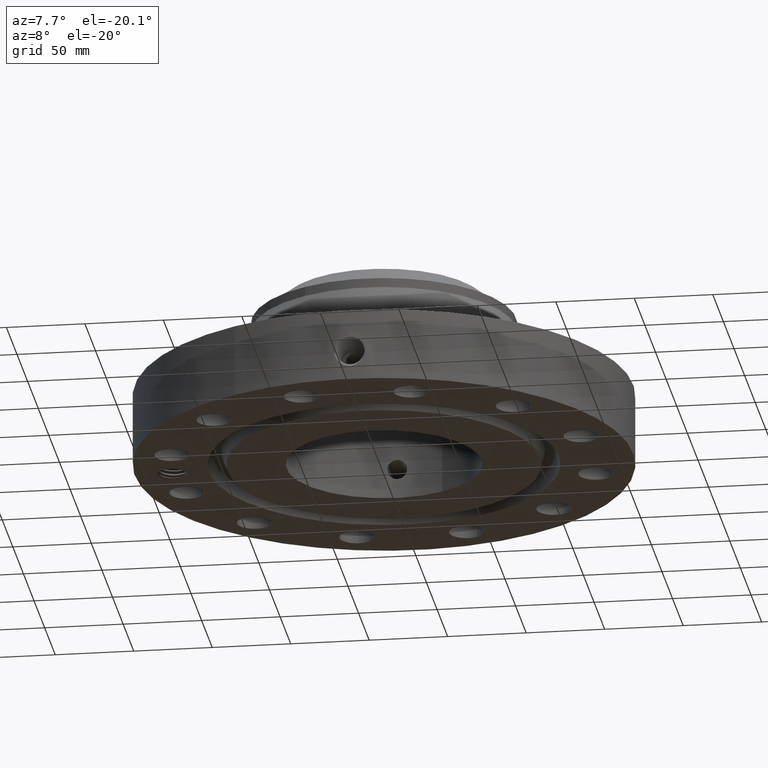
[diagram: clean part render]
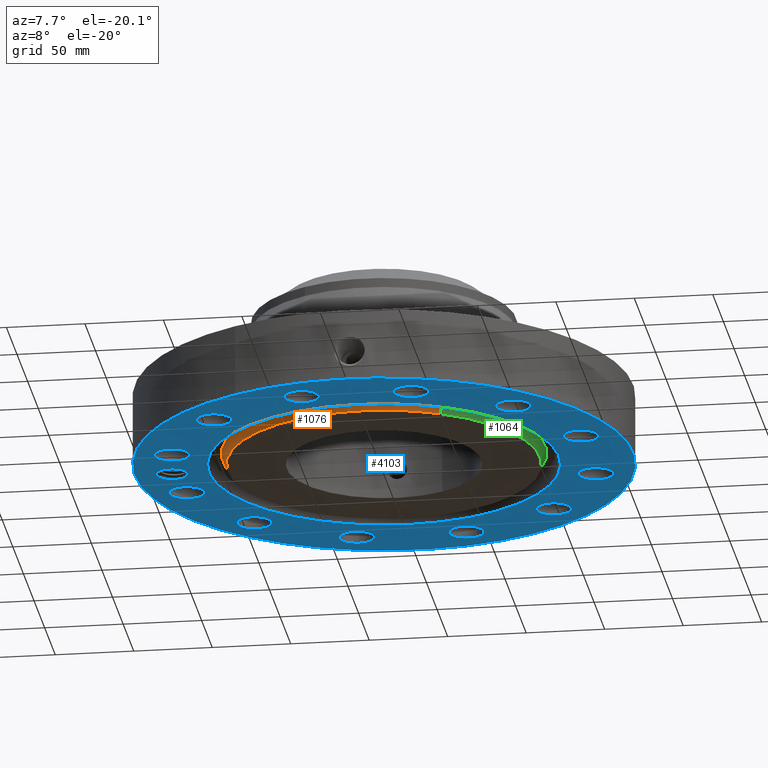
[diagram: same view with three faces highlighted in distinct colors, each labeled with its STEP entity id]
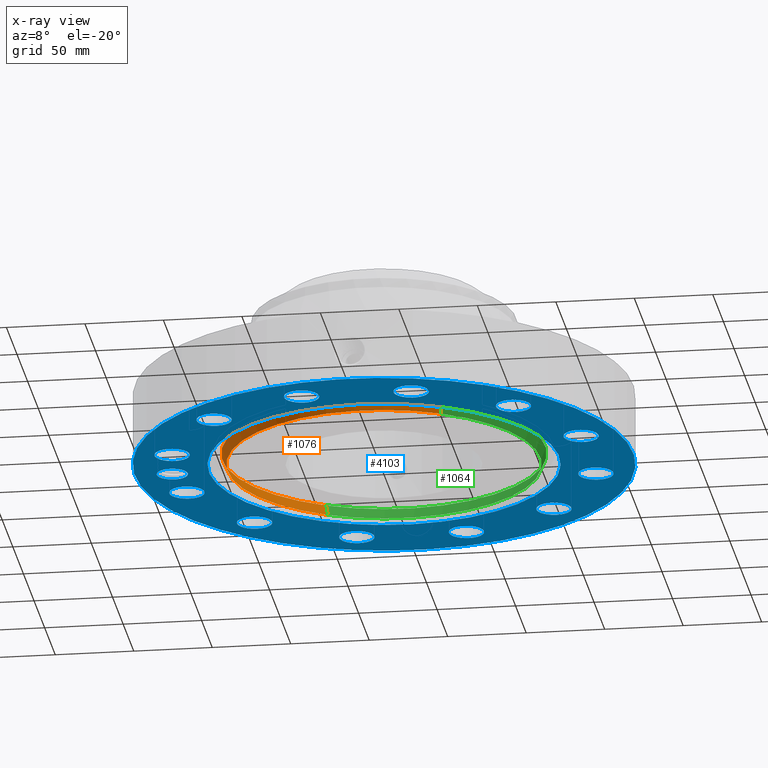
[diagram: x-ray of the same camera — body ghosted, the three highlighted faces saturated]
A machine part, auxiliary view with three faces highlighted in distinct colors.
The next image is the same camera in x-ray (body ghosted, the three faces saturated) — at least one of them is partly hidden behind the body in this view.
Their STEP definitions:

[orange] entity #1076 — the highlighted conical surface has half-angle 23 deg.
#611=AXIS2_PLACEMENT_3D('Circle Axis2P3D',#609,#610,$) ;
#1037=AXIS2_PLACEMENT_3D('Cone Axis2P3D',#1034,#1035,#1036) ;
#1067=AXIS2_PLACEMENT_3D('Circle Axis2P3D',#1065,#1066,$) ;
#604=CARTESIAN_POINT('Vertex',(-1.88030696241,3.44187880775,1.31128703696E-016)) ;
#606=CARTESIAN_POINT('Vertex',(1.88030696241,-3.44187880775,0.)) ;
#609=CARTESIAN_POINT('Axis2P3D Location',(-1.1189649382E-015,2.79741234551E-016,0.)) ;
#1034=CARTESIAN_POINT('Axis2P3D Location',(0.,0.,-0.0600000000002)) ;
#1039=CARTESIAN_POINT('Line Origine',(-1.91023352421,3.49665901167,0.147056332492)) ;
#1043=CARTESIAN_POINT('Vertex',(-1.94016008601,3.55143921559,0.294112664984)) ;
#1050=CARTESIAN_POINT('Vertex',(1.94016008601,-3.55143921559,0.294112664984)) ;
#1053=CARTESIAN_POINT('Line Origine',(1.91023352421,-3.49665901167,0.147056332492)) ;
#1065=CARTESIAN_POINT('Axis2P3D Location',(0.,0.,0.294112664984)) ;
#610=DIRECTION('Axis2P3D Direction',(0.,0.,-0.0393700787402)) ;
#1035=DIRECTION('Axis2P3D Direction',(0.,0.,0.0393700787402)) ;
#1036=DIRECTION('Axis2P3D XDirection',(-0.0188750212049,0.0345504945626,0.)) ;
#1040=DIRECTION('Vector Direction',(-0.00737505833565,0.0134999537303,0.0362403485611)) ;
#1054=DIRECTION('Vector Direction',(0.00737505833565,-0.0134999537303,0.0362403485611)) ;
#1066=DIRECTION('Axis2P3D Direction',(0.,0.,0.0393700787402)) ;
#1041=VECTOR('Line Direction',#1040,0.0393700787402) ;
#1055=VECTOR('Line Direction',#1054,0.0393700787402) ;
#1071=ORIENTED_EDGE('',*,*,#1057,.F.) ;
#1072=ORIENTED_EDGE('',*,*,#1069,.F.) ;
#1073=ORIENTED_EDGE('',*,*,#1045,.T.) ;
#1074=ORIENTED_EDGE('',*,*,#613,.F.) ;
#1076=ADVANCED_FACE('PartBody',(#1075),#1038,.T.) ;
#612=CIRCLE('generated circle',#611,3.92200000002) ;
#1068=CIRCLE('generated circle',#1067,4.04684341943) ;
#1038=CONICAL_SURFACE('Cone',#1037,3.89653151104,0.401425727959) ;
#613=EDGE_CURVE('',#607,#605,#612,.T.) ;
#1045=EDGE_CURVE('',#1044,#605,#1042,.F.) ;
#1057=EDGE_CURVE('',#1051,#607,#1056,.F.) ;
#1069=EDGE_CURVE('',#1044,#1051,#1068,.T.) ;
#1070=EDGE_LOOP('',(#1071,#1072,#1073,#1074)) ;
#1075=FACE_OUTER_BOUND('',#1070,.T.) ;
#1042=LINE('Line',#1039,#1041) ;
#1056=LINE('Line',#1053,#1055) ;
#605=VERTEX_POINT('',#604) ;
#607=VERTEX_POINT('',#606) ;
#1044=VERTEX_POINT('',#1043) ;
#1051=VERTEX_POINT('',#1050) ;

[blue] entity #4103 — the highlighted planar face has unit normal (0, 0, -1).
#598=AXIS2_PLACEMENT_3D('Plane Axis2P3D',#595,#596,#597) ;
#3275=AXIS2_PLACEMENT_3D('Circle Axis2P3D',#3273,#3274,$) ;
#3301=AXIS2_PLACEMENT_3D('Circle Axis2P3D',#3299,#3300,$) ;
#3849=AXIS2_PLACEMENT_3D('Circle Axis2P3D',#3847,#3848,$) ;
#3858=AXIS2_PLACEMENT_3D('Circle Axis2P3D',#3856,#3857,$) ;
#3867=AXIS2_PLACEMENT_3D('Circle Axis2P3D',#3865,#3866,$) ;
#3876=AXIS2_PLACEMENT_3D('Circle Axis2P3D',#3874,#3875,$) ;
#3885=AXIS2_PLACEMENT_3D('Circle Axis2P3D',#3883,#3884,$) ;
#3894=AXIS2_PLACEMENT_3D('Circle Axis2P3D',#3892,#3893,$) ;
#3903=AXIS2_PLACEMENT_3D('Circle Axis2P3D',#3901,#3902,$) ;
#3912=AXIS2_PLACEMENT_3D('Circle Axis2P3D',#3910,#3911,$) ;
#3921=AXIS2_PLACEMENT_3D('Circle Axis2P3D',#3919,#3920,$) ;
#3930=AXIS2_PLACEMENT_3D('Circle Axis2P3D',#3928,#3929,$) ;
#3939=AXIS2_PLACEMENT_3D('Circle Axis2P3D',#3937,#3938,$) ;
#3948=AXIS2_PLACEMENT_3D('Circle Axis2P3D',#3946,#3947,$) ;
#3957=AXIS2_PLACEMENT_3D('Circle Axis2P3D',#3955,#3956,$) ;
#3966=AXIS2_PLACEMENT_3D('Circle Axis2P3D',#3964,#3965,$) ;
#3975=AXIS2_PLACEMENT_3D('Circle Axis2P3D',#3973,#3974,$) ;
#3984=AXIS2_PLACEMENT_3D('Circle Axis2P3D',#3982,#3983,$) ;
#3993=AXIS2_PLACEMENT_3D('Circle Axis2P3D',#3991,#3992,$) ;
#4002=AXIS2_PLACEMENT_3D('Circle Axis2P3D',#4000,#4001,$) ;
#4011=AXIS2_PLACEMENT_3D('Circle Axis2P3D',#4009,#4010,$) ;
#4020=AXIS2_PLACEMENT_3D('Circle Axis2P3D',#4018,#4019,$) ;
#4029=AXIS2_PLACEMENT_3D('Circle Axis2P3D',#4027,#4028,$) ;
#4038=AXIS2_PLACEMENT_3D('Circle Axis2P3D',#4036,#4037,$) ;
#4047=AXIS2_PLACEMENT_3D('Circle Axis2P3D',#4045,#4046,$) ;
#4056=AXIS2_PLACEMENT_3D('Circle Axis2P3D',#4054,#4055,$) ;
#4065=AXIS2_PLACEMENT_3D('Circle Axis2P3D',#4063,#4064,$) ;
#4074=AXIS2_PLACEMENT_3D('Circle Axis2P3D',#4072,#4073,$) ;
#4083=AXIS2_PLACEMENT_3D('Circle Axis2P3D',#4081,#4082,$) ;
#4092=AXIS2_PLACEMENT_3D('Circle Axis2P3D',#4090,#4091,$) ;
#595=CARTESIAN_POINT('Axis2P3D Location',(0.,2.44850000001,0.)) ;
#3273=CARTESIAN_POINT('Axis2P3D Location',(0.,0.,-3.49676543189E-017)) ;
#3277=CARTESIAN_POINT('Vertex',(-2.10515754002,3.85346502928,-2.09805925913E-016)) ;
#3279=CARTESIAN_POINT('Vertex',(2.10515754002,-3.85346502928,1.04902962957E-016)) ;
#3299=CARTESIAN_POINT('Axis2P3D Location',(0.,0.,-3.49676543189E-017)) ;
#3847=CARTESIAN_POINT('Axis2P3D Location',(0.,0.,0.)) ;
#3851=CARTESIAN_POINT('Vertex',(-2.99640961629,-5.48489101184,5.59482469102E-016)) ;
#3853=CARTESIAN_POINT('Vertex',(2.99640961629,5.48489101184,5.59482469102E-016)) ;
#3856=CARTESIAN_POINT('Axis2P3D Location',(0.,0.,0.)) ;
#3865=CARTESIAN_POINT('Axis2P3D Location',(-5.31000000002,-2.79741234551E-016,0.)) ;
#3869=CARTESIAN_POINT('Vertex',(-4.96938826819,-0.186077037172,0.)) ;
#3871=CARTESIAN_POINT('Vertex',(-5.65061173186,0.186077037171,0.)) ;
#3874=CARTESIAN_POINT('Axis2P3D Location',(-5.31000000002,-2.79741234551E-016,0.)) ;
#3883=CARTESIAN_POINT('Axis2P3D Location',(5.12906613762,-1.3743291295,0.)) ;
#3887=CARTESIAN_POINT('Vertex',(5.51520246485,-1.58527636649,0.)) ;
#3889=CARTESIAN_POINT('Vertex',(4.74292981038,-1.16338189251,0.)) ;
#3892=CARTESIAN_POINT('Axis2P3D Location',(5.12906613762,-1.3743291295,0.)) ;
#3901=CARTESIAN_POINT('Axis2P3D Location',(3.75473700812,-3.75473700812,0.)) ;
#3905=CARTESIAN_POINT('Vertex',(3.5258067579,-3.37898317841,0.)) ;
#3907=CARTESIAN_POINT('Vertex',(3.98366725833,-4.13049083782,0.)) ;
#3910=CARTESIAN_POINT('Axis2P3D Location',(3.75473700812,-3.75473700812,0.)) ;
#3919=CARTESIAN_POINT('Axis2P3D Location',(1.3743291295,-5.12906613762,0.)) ;
#3923=CARTESIAN_POINT('Vertex',(1.36394663197,-4.68918865041,0.)) ;
#3925=CARTESIAN_POINT('Vertex',(1.38471162703,-5.56894362482,0.)) ;
#3928=CARTESIAN_POINT('Axis2P3D Location',(1.3743291295,-5.12906613762,0.)) ;
#3937=CARTESIAN_POINT('Axis2P3D Location',(-1.3743291295,-5.12906613762,0.)) ;
#3941=CARTESIAN_POINT('Vertex',(-1.16338189251,-4.74292981038,0.)) ;
#3943=CARTESIAN_POINT('Vertex',(-1.58527636649,-5.51520246485,0.)) ;
#3946=CARTESIAN_POINT('Axis2P3D Location',(-1.3743291295,-5.12906613762,0.)) ;
#3955=CARTESIAN_POINT('Axis2P3D Location',(-3.75473700812,-3.75473700812,0.)) ;
#3959=CARTESIAN_POINT('Vertex',(-3.37898317841,-3.5258067579,0.)) ;
#3961=CARTESIAN_POINT('Vertex',(-4.13049083782,-3.98366725833,-1.67844740731E-015)) ;
#3964=CARTESIAN_POINT('Axis2P3D Location',(-3.75473700812,-3.75473700812,0.)) ;
#3973=CARTESIAN_POINT('Axis2P3D Location',(-5.12906613762,-1.3743291295,0.)) ;
#3977=CARTESIAN_POINT('Vertex',(-4.68918865041,-1.36394663197,0.)) ;
#3979=CARTESIAN_POINT('Vertex',(-5.56894362482,-1.38471162703,0.)) ;
#3982=CARTESIAN_POINT('Axis2P3D Location',(-5.12906613762,-1.3743291295,0.)) ;
#3991=CARTESIAN_POINT('Axis2P3D Location',(-5.12906613762,1.3743291295,0.)) ;
#3995=CARTESIAN_POINT('Vertex',(-4.74292981038,1.16338189251,0.)) ;
#3997=CARTESIAN_POINT('Vertex',(-5.51520246485,1.58527636649,0.)) ;
#4000=CARTESIAN_POINT('Axis2P3D Location',(-5.12906613762,1.3743291295,0.)) ;
#4009=CARTESIAN_POINT('Axis2P3D Location',(-3.75473700812,3.75473700812,0.)) ;
#4013=CARTESIAN_POINT('Vertex',(-3.5258067579,3.37898317841,0.)) ;
#4015=CARTESIAN_POINT('Vertex',(-3.98366725833,4.13049083782,0.)) ;
#4018=CARTESIAN_POINT('Axis2P3D Location',(-3.75473700812,3.75473700812,0.)) ;
#4027=CARTESIAN_POINT('Axis2P3D Location',(-1.3743291295,5.12906613762,0.)) ;
#4031=CARTESIAN_POINT('Vertex',(-1.36394663197,4.68918865041,0.)) ;
#4033=CARTESIAN_POINT('Vertex',(-1.38471162703,5.56894362482,0.)) ;
#4036=CARTESIAN_POINT('Axis2P3D Location',(-1.3743291295,5.12906613762,0.)) ;
#4045=CARTESIAN_POINT('Axis2P3D Location',(1.3743291295,5.12906613762,0.)) ;
#4049=CARTESIAN_POINT('Vertex',(1.16338189251,4.74292981038,0.)) ;
#4051=CARTESIAN_POINT('Vertex',(1.58527636649,5.51520246485,0.)) ;
#4054=CARTESIAN_POINT('Axis2P3D Location',(1.3743291295,5.12906613762,0.)) ;
#4063=CARTESIAN_POINT('Axis2P3D Location',(3.75473700812,3.75473700812,0.)) ;
#4067=CARTESIAN_POINT('Vertex',(3.37898317841,3.5258067579,0.)) ;
#4069=CARTESIAN_POINT('Vertex',(4.13049083782,3.98366725833,0.)) ;
#4072=CARTESIAN_POINT('Axis2P3D Location',(3.75473700812,3.75473700812,0.)) ;
#4081=CARTESIAN_POINT('Axis2P3D Location',(5.12906613762,1.3743291295,0.)) ;
#4085=CARTESIAN_POINT('Vertex',(4.68918865041,1.36394663197,0.)) ;
#4087=CARTESIAN_POINT('Vertex',(5.56894362482,1.38471162703,0.)) ;
#4090=CARTESIAN_POINT('Axis2P3D Location',(5.12906613762,1.3743291295,0.)) ;
#596=DIRECTION('Axis2P3D Direction',(0.,0.,-0.0393700787402)) ;
#597=DIRECTION('Axis2P3D XDirection',(0.0393700787402,0.,0.)) ;
#3274=DIRECTION('Axis2P3D Direction',(0.,0.,-0.0393700787402)) ;
#3300=DIRECTION('Axis2P3D Direction',(0.,0.,-0.0393700787402)) ;
#3848=DIRECTION('Axis2P3D Direction',(0.,0.,-0.0393700787402)) ;
#3857=DIRECTION('Axis2P3D Direction',(0.,0.,-0.0393700787402)) ;
#3866=DIRECTION('Axis2P3D Direction',(0.,0.,-0.0393700787402)) ;
#3875=DIRECTION('Axis2P3D Direction',(0.,0.,-0.0393700787402)) ;
#3884=DIRECTION('Axis2P3D Direction',(0.,0.,-0.0393700787402)) ;
#3893=DIRECTION('Axis2P3D Direction',(0.,0.,-0.0393700787402)) ;
#3902=DIRECTION('Axis2P3D Direction',(0.,0.,-0.0393700787402)) ;
#3911=DIRECTION('Axis2P3D Direction',(0.,0.,-0.0393700787402)) ;
#3920=DIRECTION('Axis2P3D Direction',(0.,0.,-0.0393700787402)) ;
#3929=DIRECTION('Axis2P3D Direction',(0.,0.,-0.0393700787402)) ;
#3938=DIRECTION('Axis2P3D Direction',(0.,0.,-0.0393700787402)) ;
#3947=DIRECTION('Axis2P3D Direction',(0.,0.,-0.0393700787402)) ;
#3956=DIRECTION('Axis2P3D Direction',(0.,0.,-0.0393700787402)) ;
#3965=DIRECTION('Axis2P3D Direction',(0.,0.,-0.0393700787402)) ;
#3974=DIRECTION('Axis2P3D Direction',(0.,0.,-0.0393700787402)) ;
#3983=DIRECTION('Axis2P3D Direction',(0.,0.,-0.0393700787402)) ;
#3992=DIRECTION('Axis2P3D Direction',(0.,0.,-0.0393700787402)) ;
#4001=DIRECTION('Axis2P3D Direction',(0.,0.,-0.0393700787402)) ;
#4010=DIRECTION('Axis2P3D Direction',(0.,0.,-0.0393700787402)) ;
#4019=DIRECTION('Axis2P3D Direction',(0.,0.,-0.0393700787402)) ;
#4028=DIRECTION('Axis2P3D Direction',(0.,0.,-0.0393700787402)) ;
#4037=DIRECTION('Axis2P3D Direction',(0.,0.,-0.0393700787402)) ;
#4046=DIRECTION('Axis2P3D Direction',(0.,0.,-0.0393700787402)) ;
#4055=DIRECTION('Axis2P3D Direction',(0.,0.,-0.0393700787402)) ;
#4064=DIRECTION('Axis2P3D Direction',(0.,0.,-0.0393700787402)) ;
#4073=DIRECTION('Axis2P3D Direction',(0.,0.,-0.0393700787402)) ;
#4082=DIRECTION('Axis2P3D Direction',(0.,0.,-0.0393700787402)) ;
#4091=DIRECTION('Axis2P3D Direction',(0.,0.,-0.0393700787402)) ;
#3862=ORIENTED_EDGE('',*,*,#3855,.T.) ;
#3863=ORIENTED_EDGE('',*,*,#3860,.T.) ;
#3880=ORIENTED_EDGE('',*,*,#3873,.F.) ;
#3881=ORIENTED_EDGE('',*,*,#3878,.F.) ;
#3898=ORIENTED_EDGE('',*,*,#3891,.F.) ;
#3899=ORIENTED_EDGE('',*,*,#3896,.F.) ;
#3916=ORIENTED_EDGE('',*,*,#3909,.F.) ;
#3917=ORIENTED_EDGE('',*,*,#3914,.F.) ;
#3934=ORIENTED_EDGE('',*,*,#3927,.F.) ;
#3935=ORIENTED_EDGE('',*,*,#3932,.F.) ;
#3952=ORIENTED_EDGE('',*,*,#3945,.F.) ;
#3953=ORIENTED_EDGE('',*,*,#3950,.F.) ;
#3970=ORIENTED_EDGE('',*,*,#3963,.F.) ;
#3971=ORIENTED_EDGE('',*,*,#3968,.F.) ;
#3988=ORIENTED_EDGE('',*,*,#3981,.F.) ;
#3989=ORIENTED_EDGE('',*,*,#3986,.F.) ;
#4006=ORIENTED_EDGE('',*,*,#3999,.F.) ;
#4007=ORIENTED_EDGE('',*,*,#4004,.F.) ;
#4024=ORIENTED_EDGE('',*,*,#4017,.F.) ;
#4025=ORIENTED_EDGE('',*,*,#4022,.F.) ;
#4042=ORIENTED_EDGE('',*,*,#4035,.F.) ;
#4043=ORIENTED_EDGE('',*,*,#4040,.F.) ;
#4060=ORIENTED_EDGE('',*,*,#4053,.F.) ;
#4061=ORIENTED_EDGE('',*,*,#4058,.F.) ;
#4078=ORIENTED_EDGE('',*,*,#4071,.F.) ;
#4079=ORIENTED_EDGE('',*,*,#4076,.F.) ;
#4096=ORIENTED_EDGE('',*,*,#4089,.F.) ;
#4097=ORIENTED_EDGE('',*,*,#4094,.F.) ;
#4100=ORIENTED_EDGE('',*,*,#3303,.F.) ;
#4101=ORIENTED_EDGE('',*,*,#3281,.F.) ;
#3882=FACE_BOUND('',#3879,.T.) ;
#3900=FACE_BOUND('',#3897,.T.) ;
#3918=FACE_BOUND('',#3915,.T.) ;
#3936=FACE_BOUND('',#3933,.T.) ;
#3954=FACE_BOUND('',#3951,.T.) ;
#3972=FACE_BOUND('',#3969,.T.) ;
#3990=FACE_BOUND('',#3987,.T.) ;
#4008=FACE_BOUND('',#4005,.T.) ;
#4026=FACE_BOUND('',#4023,.T.) ;
#4044=FACE_BOUND('',#4041,.T.) ;
#4062=FACE_BOUND('',#4059,.T.) ;
#4080=FACE_BOUND('',#4077,.T.) ;
#4098=FACE_BOUND('',#4095,.T.) ;
#4102=FACE_BOUND('',#4099,.T.) ;
#4103=ADVANCED_FACE('PartBody',(#3864,#3882,#3900,#3918,#3936,#3954,#3972,#3990,#4008,#4026,#4044,#4062,#4080,#4098,#4102),#599,.T.) ;
#3276=CIRCLE('generated circle',#3275,4.39100000002) ;
#3302=CIRCLE('generated circle',#3301,4.39100000002) ;
#3850=CIRCLE('generated circle',#3849,6.25000000003) ;
#3859=CIRCLE('generated circle',#3858,6.25000000003) ;
#3868=CIRCLE('generated circle',#3867,0.388125000002) ;
#3877=CIRCLE('generated circle',#3876,0.388125000002) ;
#3886=CIRCLE('generated circle',#3885,0.440000000002) ;
#3895=CIRCLE('generated circle',#3894,0.440000000002) ;
#3904=CIRCLE('generated circle',#3903,0.440000000002) ;
#3913=CIRCLE('generated circle',#3912,0.440000000002) ;
#3922=CIRCLE('generated circle',#3921,0.440000000002) ;
#3931=CIRCLE('generated circle',#3930,0.440000000002) ;
#3940=CIRCLE('generated circle',#3939,0.440000000002) ;
#3949=CIRCLE('generated circle',#3948,0.440000000002) ;
#3958=CIRCLE('generated circle',#3957,0.440000000002) ;
#3967=CIRCLE('generated circle',#3966,0.440000000002) ;
#3976=CIRCLE('generated circle',#3975,0.440000000002) ;
#3985=CIRCLE('generated circle',#3984,0.440000000002) ;
#3994=CIRCLE('generated circle',#3993,0.440000000002) ;
#4003=CIRCLE('generated circle',#4002,0.440000000002) ;
#4012=CIRCLE('generated circle',#4011,0.440000000002) ;
#4021=CIRCLE('generated circle',#4020,0.440000000002) ;
#4030=CIRCLE('generated circle',#4029,0.440000000002) ;
#4039=CIRCLE('generated circle',#4038,0.440000000002) ;
#4048=CIRCLE('generated circle',#4047,0.440000000002) ;
#4057=CIRCLE('generated circle',#4056,0.440000000002) ;
#4066=CIRCLE('generated circle',#4065,0.440000000002) ;
#4075=CIRCLE('generated circle',#4074,0.440000000002) ;
#4084=CIRCLE('generated circle',#4083,0.440000000002) ;
#4093=CIRCLE('generated circle',#4092,0.440000000002) ;
#3281=EDGE_CURVE('',#3278,#3280,#3276,.T.) ;
#3303=EDGE_CURVE('',#3280,#3278,#3302,.T.) ;
#3855=EDGE_CURVE('',#3852,#3854,#3850,.T.) ;
#3860=EDGE_CURVE('',#3854,#3852,#3859,.T.) ;
#3873=EDGE_CURVE('',#3870,#3872,#3868,.T.) ;
#3878=EDGE_CURVE('',#3872,#3870,#3877,.T.) ;
#3891=EDGE_CURVE('',#3888,#3890,#3886,.T.) ;
#3896=EDGE_CURVE('',#3890,#3888,#3895,.T.) ;
#3909=EDGE_CURVE('',#3906,#3908,#3904,.T.) ;
#3914=EDGE_CURVE('',#3908,#3906,#3913,.T.) ;
#3927=EDGE_CURVE('',#3924,#3926,#3922,.T.) ;
#3932=EDGE_CURVE('',#3926,#3924,#3931,.T.) ;
#3945=EDGE_CURVE('',#3942,#3944,#3940,.T.) ;
#3950=EDGE_CURVE('',#3944,#3942,#3949,.T.) ;
#3963=EDGE_CURVE('',#3960,#3962,#3958,.T.) ;
#3968=EDGE_CURVE('',#3962,#3960,#3967,.T.) ;
#3981=EDGE_CURVE('',#3978,#3980,#3976,.T.) ;
#3986=EDGE_CURVE('',#3980,#3978,#3985,.T.) ;
#3999=EDGE_CURVE('',#3996,#3998,#3994,.T.) ;
#4004=EDGE_CURVE('',#3998,#3996,#4003,.T.) ;
#4017=EDGE_CURVE('',#4014,#4016,#4012,.T.) ;
#4022=EDGE_CURVE('',#4016,#4014,#4021,.T.) ;
#4035=EDGE_CURVE('',#4032,#4034,#4030,.T.) ;
#4040=EDGE_CURVE('',#4034,#4032,#4039,.T.) ;
#4053=EDGE_CURVE('',#4050,#4052,#4048,.T.) ;
#4058=EDGE_CURVE('',#4052,#4050,#4057,.T.) ;
#4071=EDGE_CURVE('',#4068,#4070,#4066,.T.) ;
#4076=EDGE_CURVE('',#4070,#4068,#4075,.T.) ;
#4089=EDGE_CURVE('',#4086,#4088,#4084,.T.) ;
#4094=EDGE_CURVE('',#4088,#4086,#4093,.T.) ;
#3861=EDGE_LOOP('',(#3862,#3863)) ;
#3879=EDGE_LOOP('',(#3880,#3881)) ;
#3897=EDGE_LOOP('',(#3898,#3899)) ;
#3915=EDGE_LOOP('',(#3916,#3917)) ;
#3933=EDGE_LOOP('',(#3934,#3935)) ;
#3951=EDGE_LOOP('',(#3952,#3953)) ;
#3969=EDGE_LOOP('',(#3970,#3971)) ;
#3987=EDGE_LOOP('',(#3988,#3989)) ;
#4005=EDGE_LOOP('',(#4006,#4007)) ;
#4023=EDGE_LOOP('',(#4024,#4025)) ;
#4041=EDGE_LOOP('',(#4042,#4043)) ;
#4059=EDGE_LOOP('',(#4060,#4061)) ;
#4077=EDGE_LOOP('',(#4078,#4079)) ;
#4095=EDGE_LOOP('',(#4096,#4097)) ;
#4099=EDGE_LOOP('',(#4100,#4101)) ;
#3864=FACE_OUTER_BOUND('',#3861,.T.) ;
#599=PLANE('',#598) ;
#3278=VERTEX_POINT('',#3277) ;
#3280=VERTEX_POINT('',#3279) ;
#3852=VERTEX_POINT('',#3851) ;
#3854=VERTEX_POINT('',#3853) ;
#3870=VERTEX_POINT('',#3869) ;
#3872=VERTEX_POINT('',#3871) ;
#3888=VERTEX_POINT('',#3887) ;
#3890=VERTEX_POINT('',#3889) ;
#3906=VERTEX_POINT('',#3905) ;
#3908=VERTEX_POINT('',#3907) ;
#3924=VERTEX_POINT('',#3923) ;
#3926=VERTEX_POINT('',#3925) ;
#3942=VERTEX_POINT('',#3941) ;
#3944=VERTEX_POINT('',#3943) ;
#3960=VERTEX_POINT('',#3959) ;
#3962=VERTEX_POINT('',#3961) ;
#3978=VERTEX_POINT('',#3977) ;
#3980=VERTEX_POINT('',#3979) ;
#3996=VERTEX_POINT('',#3995) ;
#3998=VERTEX_POINT('',#3997) ;
#4014=VERTEX_POINT('',#4013) ;
#4016=VERTEX_POINT('',#4015) ;
#4032=VERTEX_POINT('',#4031) ;
#4034=VERTEX_POINT('',#4033) ;
#4050=VERTEX_POINT('',#4049) ;
#4052=VERTEX_POINT('',#4051) ;
#4068=VERTEX_POINT('',#4067) ;
#4070=VERTEX_POINT('',#4069) ;
#4086=VERTEX_POINT('',#4085) ;
#4088=VERTEX_POINT('',#4087) ;

[green] entity #1064 — the highlighted conical surface has half-angle 23 deg.
#602=AXIS2_PLACEMENT_3D('Circle Axis2P3D',#600,#601,$) ;
#1037=AXIS2_PLACEMENT_3D('Cone Axis2P3D',#1034,#1035,#1036) ;
#1048=AXIS2_PLACEMENT_3D('Circle Axis2P3D',#1046,#1047,$) ;
#600=CARTESIAN_POINT('Axis2P3D Location',(1.1189649382E-015,2.79741234551E-016,0.)) ;
#604=CARTESIAN_POINT('Vertex',(-1.88030696241,3.44187880775,1.31128703696E-016)) ;
#606=CARTESIAN_POINT('Vertex',(1.88030696241,-3.44187880775,0.)) ;
#1034=CARTESIAN_POINT('Axis2P3D Location',(0.,0.,-0.0600000000002)) ;
#1039=CARTESIAN_POINT('Line Origine',(-1.91023352421,3.49665901167,0.147056332492)) ;
#1043=CARTESIAN_POINT('Vertex',(-1.94016008601,3.55143921559,0.294112664984)) ;
#1046=CARTESIAN_POINT('Axis2P3D Location',(0.,0.,0.294112664984)) ;
#1050=CARTESIAN_POINT('Vertex',(1.94016008601,-3.55143921559,0.294112664984)) ;
#1053=CARTESIAN_POINT('Line Origine',(1.91023352421,-3.49665901167,0.147056332492)) ;
#601=DIRECTION('Axis2P3D Direction',(0.,0.,-0.0393700787402)) ;
#1035=DIRECTION('Axis2P3D Direction',(0.,0.,0.0393700787402)) ;
#1036=DIRECTION('Axis2P3D XDirection',(-0.0188750212049,0.0345504945626,0.)) ;
#1040=DIRECTION('Vector Direction',(-0.00737505833565,0.0134999537303,0.0362403485611)) ;
#1047=DIRECTION('Axis2P3D Direction',(0.,0.,0.0393700787402)) ;
#1054=DIRECTION('Vector Direction',(0.00737505833565,-0.0134999537303,0.0362403485611)) ;
#1041=VECTOR('Line Direction',#1040,0.0393700787402) ;
#1055=VECTOR('Line Direction',#1054,0.0393700787402) ;
#1059=ORIENTED_EDGE('',*,*,#1045,.F.) ;
#1060=ORIENTED_EDGE('',*,*,#1052,.F.) ;
#1061=ORIENTED_EDGE('',*,*,#1057,.T.) ;
#1062=ORIENTED_EDGE('',*,*,#608,.F.) ;
#1064=ADVANCED_FACE('PartBody',(#1063),#1038,.T.) ;
#603=CIRCLE('generated circle',#602,3.92200000002) ;
#1049=CIRCLE('generated circle',#1048,4.04684341943) ;
#1038=CONICAL_SURFACE('Cone',#1037,3.89653151104,0.401425727959) ;
#608=EDGE_CURVE('',#605,#607,#603,.T.) ;
#1045=EDGE_CURVE('',#1044,#605,#1042,.F.) ;
#1052=EDGE_CURVE('',#1051,#1044,#1049,.T.) ;
#1057=EDGE_CURVE('',#1051,#607,#1056,.F.) ;
#1058=EDGE_LOOP('',(#1059,#1060,#1061,#1062)) ;
#1063=FACE_OUTER_BOUND('',#1058,.T.) ;
#1042=LINE('Line',#1039,#1041) ;
#1056=LINE('Line',#1053,#1055) ;
#605=VERTEX_POINT('',#604) ;
#607=VERTEX_POINT('',#606) ;
#1044=VERTEX_POINT('',#1043) ;
#1051=VERTEX_POINT('',#1050) ;